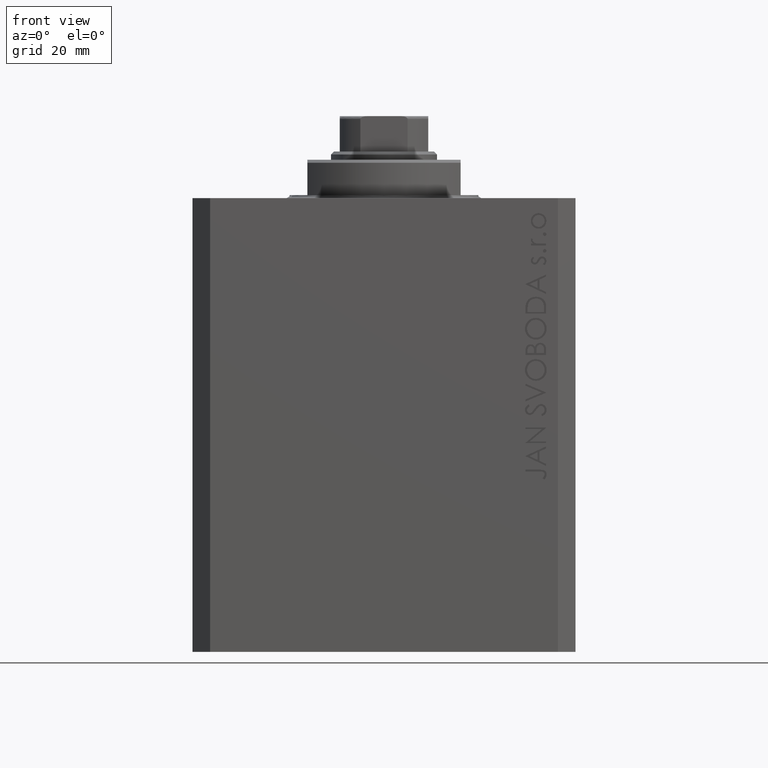
[diagram: clean part render]
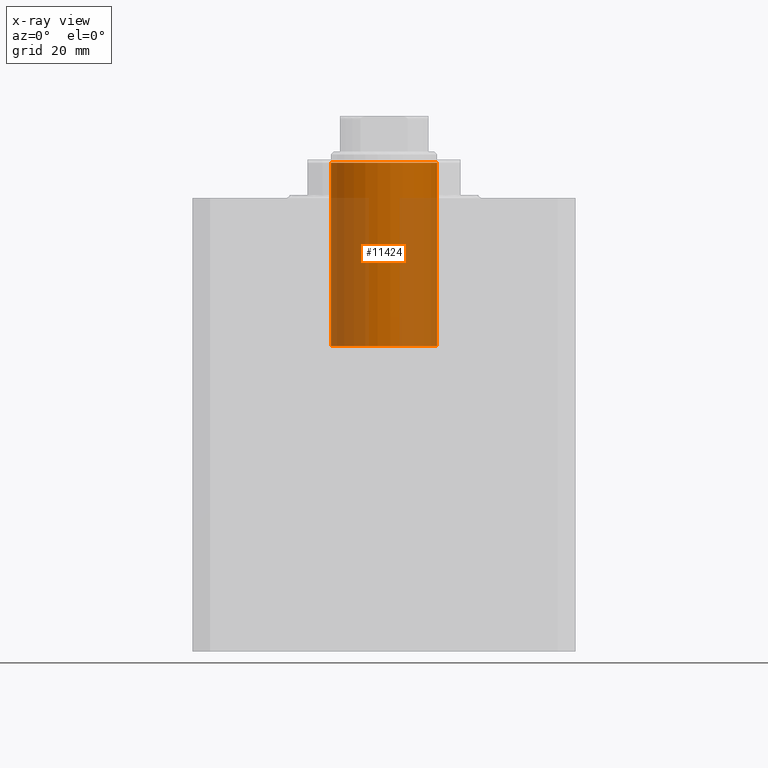
[diagram: x-ray — body ghosted, one internal face saturated and labeled with its STEP entity id]
A machine part, front view, then the same camera in x-ray: the body is ghosted and one INTERNAL B-rep face — a face not visible from any outside direction — is saturated and labeled: STEP entity #11424.
In plain terms, the highlighted cylindrical surface (partial cylindrical patch) has radius 9 mm, axis along (0, -0, 1).
Its self-contained STEP definition (entity closure, byte-faithful):
#1614 = FACE_OUTER_BOUND ( 'NONE', #4542, .T. ) ;
#3226 = DIRECTION ( 'NONE',  ( 0.000000000000000000, 0.000000000000000000, -1.000000000000000000 ) ) ;
#3362 = VERTEX_POINT ( 'NONE', #27202 ) ;
#4488 = LINE ( 'NONE', #41907, #38482 ) ;
#4542 = EDGE_LOOP ( 'NONE', ( #38973, #9877, #36075, #17837 ) ) ;
#9066 = CARTESIAN_POINT ( 'NONE',  ( 9.000000000000000000, 1.102182119232617714E-15, -6.000000000000001776 ) ) ;
#9877 = ORIENTED_EDGE ( 'NONE', *, *, #23788, .T. ) ;
#9962 = CARTESIAN_POINT ( 'NONE',  ( 9.000000000000000000, 1.102182119232617714E-15, 25.10000000000000497 ) ) ;
#10340 = CIRCLE ( 'NONE', #36387, 9.000000000000000000 ) ;
#11424 = ADVANCED_FACE ( 'NONE', ( #1614 ), #34257, .F. ) ;
#12051 = VERTEX_POINT ( 'NONE', #12234 ) ;
#12234 = CARTESIAN_POINT ( 'NONE',  ( -9.000000000000000000, 0.000000000000000000, -6.000000000000001776 ) ) ;
#13260 = CARTESIAN_POINT ( 'NONE',  ( -9.000000000000000000, 0.000000000000000000, 25.10000000000000497 ) ) ;
#16005 = DIRECTION ( 'NONE',  ( -0.000000000000000000, -0.000000000000000000, -1.000000000000000000 ) ) ;
#16237 = CARTESIAN_POINT ( 'NONE',  ( 0.000000000000000000, 0.000000000000000000, 25.10000000000000497 ) ) ;
#17837 = ORIENTED_EDGE ( 'NONE', *, *, #35567, .F. ) ;
#20255 = VECTOR ( 'NONE', #38972, 1000.000000000000000 ) ;
#21428 = EDGE_CURVE ( 'NONE', #35877, #12051, #26665, .T. ) ;
#23456 = DIRECTION ( 'NONE',  ( -1.000000000000000000, 0.000000000000000000, 0.000000000000000000 ) ) ;
#23788 = EDGE_CURVE ( 'NONE', #35148, #35877, #4488, .T. ) ;
#26407 = DIRECTION ( 'NONE',  ( 0.000000000000000000, 0.000000000000000000, -1.000000000000000000 ) ) ;
#26665 = CIRCLE ( 'NONE', #45857, 9.000000000000000000 ) ;
#27202 = CARTESIAN_POINT ( 'NONE',  ( -9.000000000000000000, 0.000000000000000000, 25.10000000000000497 ) ) ;
#27665 = LINE ( 'NONE', #13260, #20255 ) ;
#28686 = AXIS2_PLACEMENT_3D ( 'NONE', #16237, #16005, #23456 ) ;
#34257 = CYLINDRICAL_SURFACE ( 'NONE', #28686, 9.000000000000000000 ) ;
#35148 = VERTEX_POINT ( 'NONE', #9962 ) ;
#35567 = EDGE_CURVE ( 'NONE', #3362, #12051, #27665, .T. ) ;
#35632 = CARTESIAN_POINT ( 'NONE',  ( 0.000000000000000000, 0.000000000000000000, 25.10000000000000497 ) ) ;
#35877 = VERTEX_POINT ( 'NONE', #9066 ) ;
#36075 = ORIENTED_EDGE ( 'NONE', *, *, #21428, .T. ) ;
#36387 = AXIS2_PLACEMENT_3D ( 'NONE', #35632, #3226, #39936 ) ;
#38482 = VECTOR ( 'NONE', #45038, 1000.000000000000000 ) ;
#38972 = DIRECTION ( 'NONE',  ( -0.000000000000000000, -0.000000000000000000, -1.000000000000000000 ) ) ;
#38973 = ORIENTED_EDGE ( 'NONE', *, *, #42103, .F. ) ;
#39936 = DIRECTION ( 'NONE',  ( -1.000000000000000000, 0.000000000000000000, 0.000000000000000000 ) ) ;
#41059 = DIRECTION ( 'NONE',  ( -1.000000000000000000, 0.000000000000000000, 0.000000000000000000 ) ) ;
#41907 = CARTESIAN_POINT ( 'NONE',  ( 9.000000000000000000, 1.102182119232617714E-15, 25.10000000000000497 ) ) ;
#42103 = EDGE_CURVE ( 'NONE', #35148, #3362, #10340, .T. ) ;
#44646 = CARTESIAN_POINT ( 'NONE',  ( 0.000000000000000000, 0.000000000000000000, -6.000000000000001776 ) ) ;
#45038 = DIRECTION ( 'NONE',  ( -0.000000000000000000, -0.000000000000000000, -1.000000000000000000 ) ) ;
#45857 = AXIS2_PLACEMENT_3D ( 'NONE', #44646, #26407, #41059 ) ;